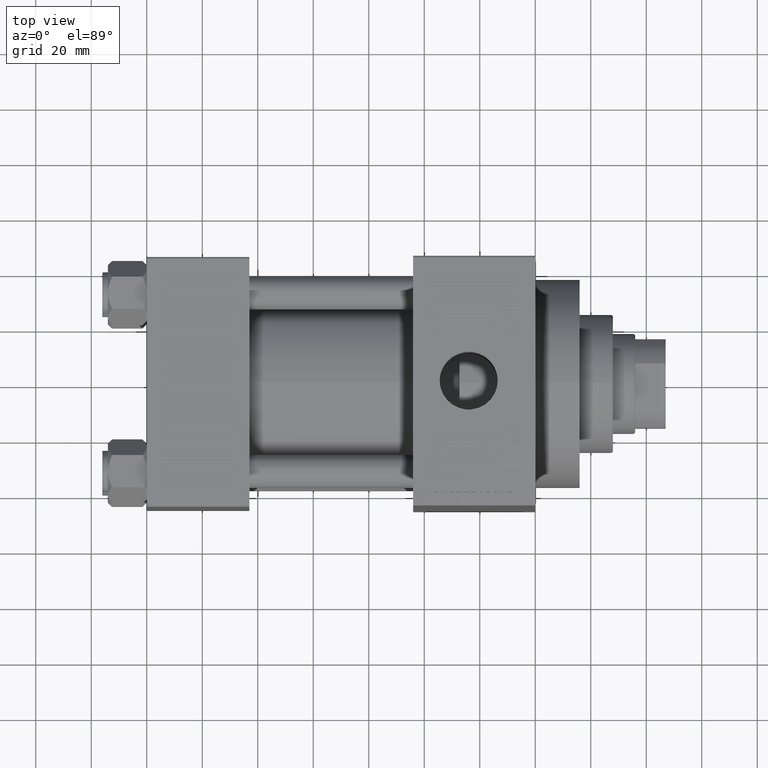
[diagram: clean part render]
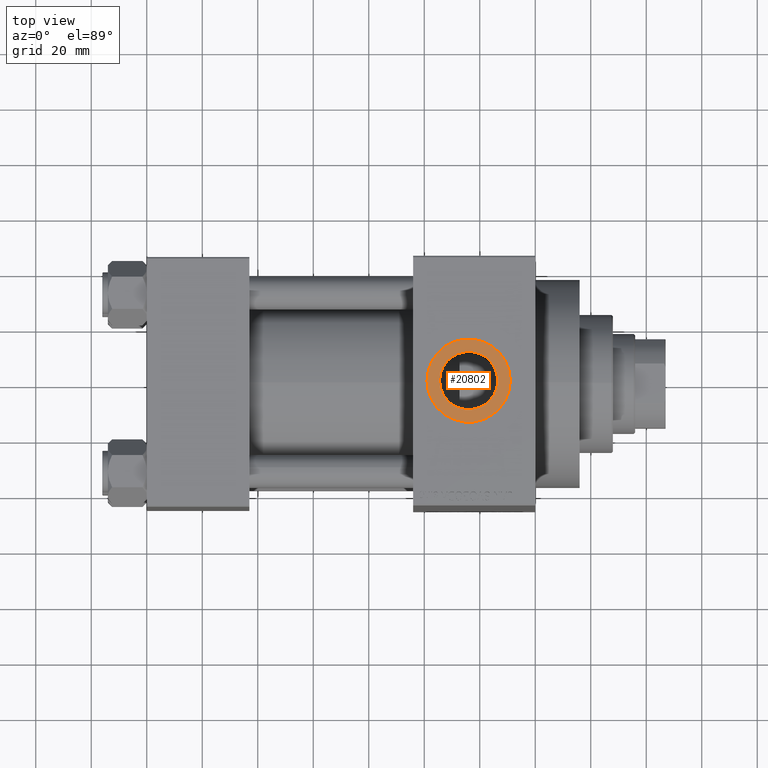
[diagram: same view with one face highlighted and labeled with its STEP entity id]
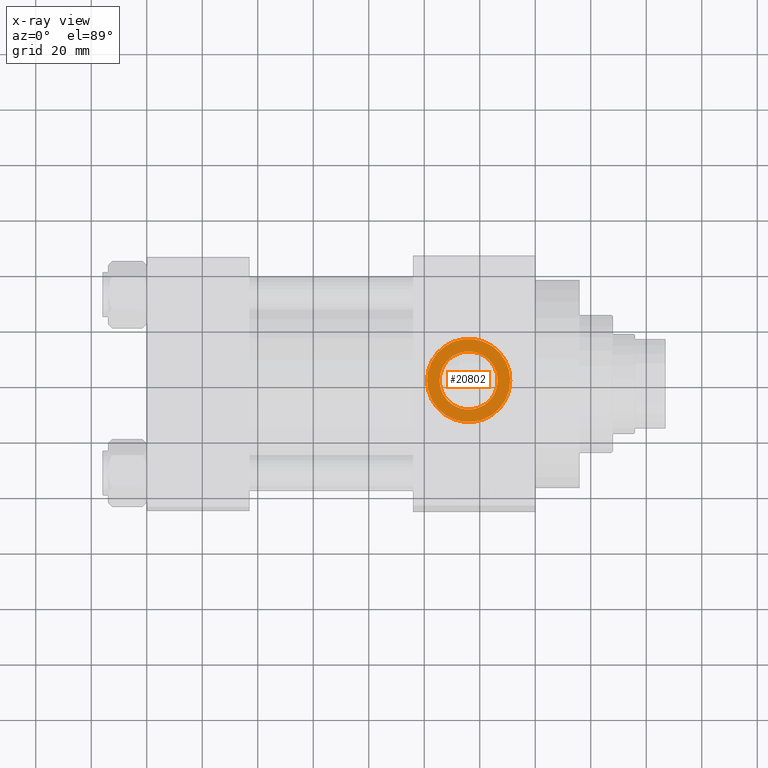
[diagram: x-ray of the same camera — body ghosted, the highlighted face saturated]
A machine part, top view. The second image highlights one B-rep face of the part: STEP entity #20802.
The next image is the same camera in x-ray: the body ghosted, the highlighted face saturated — about 0% of this face is hidden behind the body in this view.
In plain terms, the highlighted planar face has unit normal (0, 0, 1).
Its self-contained STEP definition (entity closure, byte-faithful):
#717 = VERTEX_POINT ( 'NONE', #22841 ) ;
#1288 = DIRECTION ( 'NONE',  ( 0.000000000000000000, 0.000000000000000000, 1.000000000000000000 ) ) ;
#1788 = EDGE_LOOP ( 'NONE', ( #27995, #35969 ) ) ;
#3579 = CARTESIAN_POINT ( 'NONE',  ( 116.0000000000000000, -1.094803260394251466E-14, 70.79999999999996874 ) ) ;
#5090 = FACE_BOUND ( 'NONE', #1788, .T. ) ;
#6044 = EDGE_CURVE ( 'NONE', #20405, #6690, #14674, .T. ) ;
#6690 = VERTEX_POINT ( 'NONE', #11321 ) ;
#8421 = FACE_OUTER_BOUND ( 'NONE', #38280, .T. ) ;
#8554 = ORIENTED_EDGE ( 'NONE', *, *, #27371, .T. ) ;
#11191 = DIRECTION ( 'NONE',  ( -0.000000000000000000, -0.000000000000000000, -1.000000000000000000 ) ) ;
#11321 = CARTESIAN_POINT ( 'NONE',  ( 126.4800000000000040, -9.664602758436087591E-15, 70.79999999999996874 ) ) ;
#14674 = CIRCLE ( 'NONE', #32282, 10.48000000000000398 ) ;
#15359 = CARTESIAN_POINT ( 'NONE',  ( 116.0000000000000000, -1.094803260394251466E-14, 70.79999999999996874 ) ) ;
#16338 = CARTESIAN_POINT ( 'NONE',  ( 116.0000000000000000, -1.094803260394251466E-14, 70.79999999999996874 ) ) ;
#16710 = DIRECTION ( 'NONE',  ( -0.000000000000000000, -0.000000000000000000, -1.000000000000000000 ) ) ;
#18683 = EDGE_CURVE ( 'NONE', #717, #21934, #20326, .T. ) ;
#18843 = CARTESIAN_POINT ( 'NONE',  ( 116.0000000000000000, -1.094803260394251466E-14, 70.79999999999996874 ) ) ;
#19476 = EDGE_CURVE ( 'NONE', #6690, #20405, #36346, .T. ) ;
#19649 = PLANE ( 'NONE',  #36867 ) ;
#20307 = CARTESIAN_POINT ( 'NONE',  ( 116.0000000000000000, -1.094803260394251466E-14, 70.79999999999996874 ) ) ;
#20315 = AXIS2_PLACEMENT_3D ( 'NONE', #18843, #33168, #32941 ) ;
#20326 = CIRCLE ( 'NONE', #27934, 15.00000000000000000 ) ;
#20405 = VERTEX_POINT ( 'NONE', #47201 ) ;
#20729 = ORIENTED_EDGE ( 'NONE', *, *, #18683, .T. ) ;
#20802 = ADVANCED_FACE ( 'NONE', ( #5090, #8421 ), #19649, .T. ) ;
#21934 = VERTEX_POINT ( 'NONE', #39902 ) ;
#22841 = CARTESIAN_POINT ( 'NONE',  ( 131.0000000000000000, -1.094803260394251466E-14, 70.79999999999996874 ) ) ;
#24151 = AXIS2_PLACEMENT_3D ( 'NONE', #3579, #11191, #44356 ) ;
#27212 = CIRCLE ( 'NONE', #20315, 15.00000000000000000 ) ;
#27371 = EDGE_CURVE ( 'NONE', #21934, #717, #27212, .T. ) ;
#27934 = AXIS2_PLACEMENT_3D ( 'NONE', #16338, #41418, #45695 ) ;
#27995 = ORIENTED_EDGE ( 'NONE', *, *, #6044, .T. ) ;
#31292 = DIRECTION ( 'NONE',  ( 1.000000000000000000, 0.000000000000000000, 0.000000000000000000 ) ) ;
#32282 = AXIS2_PLACEMENT_3D ( 'NONE', #20307, #16710, #31292 ) ;
#32941 = DIRECTION ( 'NONE',  ( 1.000000000000000000, 0.000000000000000000, 0.000000000000000000 ) ) ;
#33168 = DIRECTION ( 'NONE',  ( 0.000000000000000000, 0.000000000000000000, 1.000000000000000000 ) ) ;
#35969 = ORIENTED_EDGE ( 'NONE', *, *, #19476, .T. ) ;
#36346 = CIRCLE ( 'NONE', #24151, 10.48000000000000398 ) ;
#36867 = AXIS2_PLACEMENT_3D ( 'NONE', #15359, #1288, #41611 ) ;
#38280 = EDGE_LOOP ( 'NONE', ( #20729, #8554 ) ) ;
#39902 = CARTESIAN_POINT ( 'NONE',  ( 100.9999999999999858, -9.111062405221482702E-15, 70.79999999999996874 ) ) ;
#41418 = DIRECTION ( 'NONE',  ( 0.000000000000000000, 0.000000000000000000, 1.000000000000000000 ) ) ;
#41611 = DIRECTION ( 'NONE',  ( 1.000000000000000000, 0.000000000000000000, -0.000000000000000000 ) ) ;
#44356 = DIRECTION ( 'NONE',  ( 1.000000000000000000, 0.000000000000000000, 0.000000000000000000 ) ) ;
#45695 = DIRECTION ( 'NONE',  ( 1.000000000000000000, 0.000000000000000000, 0.000000000000000000 ) ) ;
#47201 = CARTESIAN_POINT ( 'NONE',  ( 105.5199999999999960, -1.094803260394251466E-14, 70.79999999999996874 ) ) ;